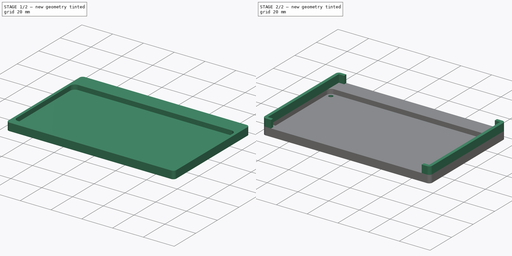
[diagram: build sequence overview — one tinted view per stage of 2, left to right]
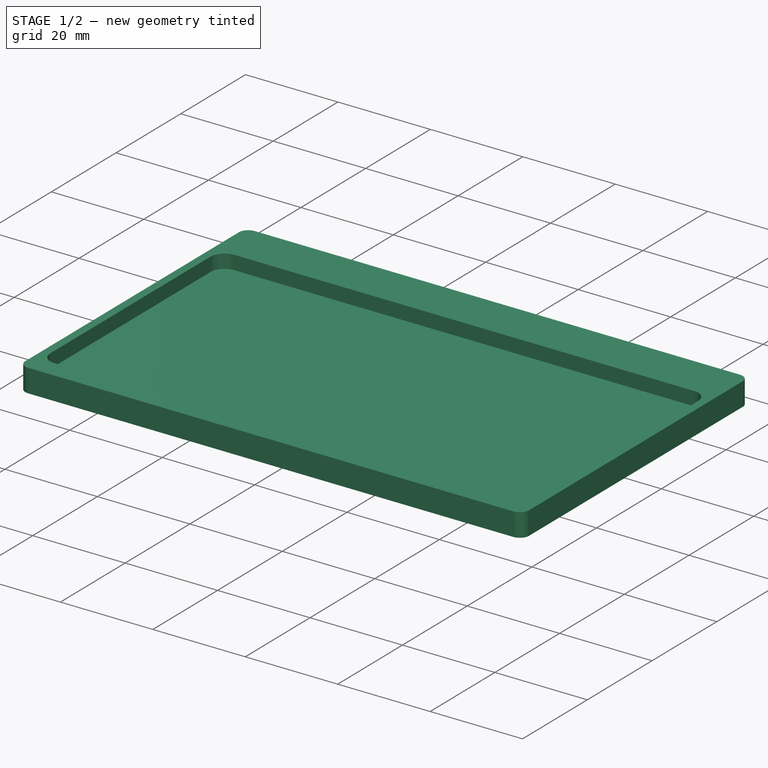
[diagram: stage 1 of 2 — iso view after this stage's code; geometry added in this stage tinted green]
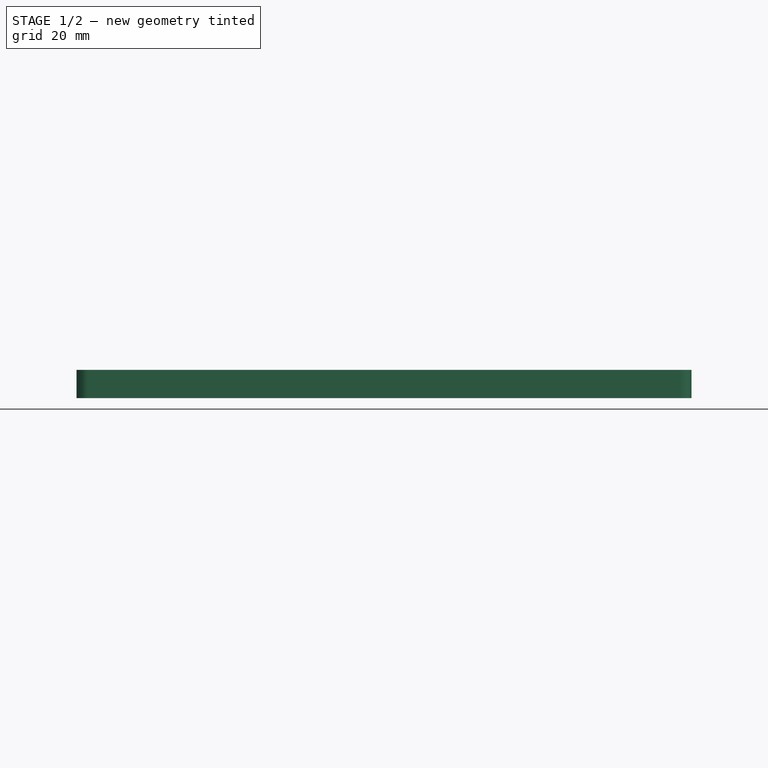
[diagram: stage 1 of 2 — front view after this stage's code; geometry added in this stage tinted green]
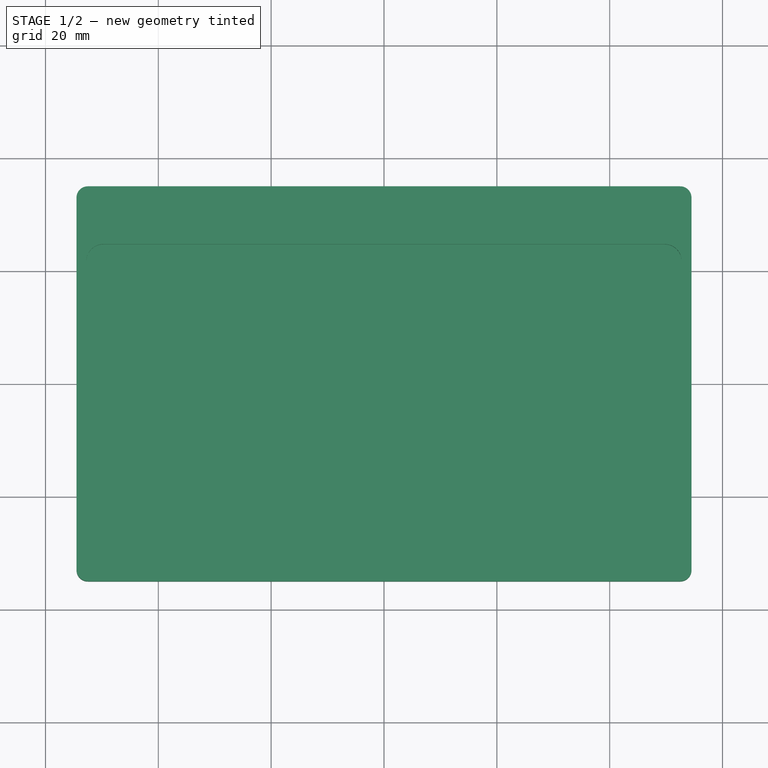
[diagram: stage 1 of 2 — top view after this stage's code; geometry added in this stage tinted green]
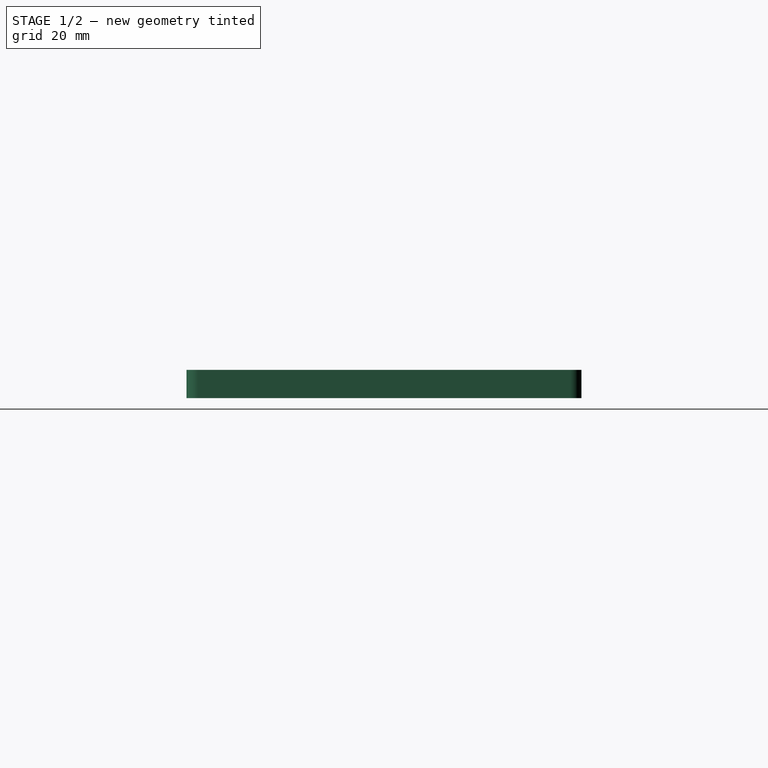
[diagram: stage 1 of 2 — right view after this stage's code; geometry added in this stage tinted green]
FCSTD DOCUMENT  (FreeCAD 1.0R39109 (Git))
Label: SSR_din_case
License: All rights reserved
LicenseURL: https://en.wikipedia.org/wiki/All_rights_reserved
objects: Sketcher::SketchObject×3, PartDesign::Pad×2, PartDesign::Pocket×2, PartDesign::Body×1
note: 19 computed .brp shape members not serialized (recipe doc carries the construction recipe); baked Part::Feature solids carry a one-line shape summary decoded from their .brp

FEATURE [Sketcher::SketchObject] Sketch
  ArcFitTolerance = 1e-06
  AttachmentSupport = -> [XY_Plane]
  FullyConstrained = true
  MakeInternals = false
  MapMode = 5
  expr: Constraints[5] = 55 + 5 + 10
  expr: Constraints[6] = 2 * 2 + 105
  sketch-geometry (12):
    g0: LineSegment StartX=-54.5 StartY=33 StartZ=0 EndX=-54.5 EndY=-33 EndZ=0
    g1: LineSegment StartX=-52.5 StartY=-35 StartZ=0 EndX=52.5 EndY=-35 EndZ=0
    g2: LineSegment StartX=54.5 StartY=-33 StartZ=0 EndX=54.5 EndY=33 EndZ=0
    g3: LineSegment StartX=52.5 StartY=35 StartZ=0 EndX=-52.5 EndY=35 EndZ=0
    g4: ArcOfCircle CenterX=-52.5 CenterY=33 CenterZ=0 NormalX=0 NormalY=0 NormalZ=1 AngleXU=0 Radius=2 StartAngle=1.5708 EndAngle=3.14159
    g5: GeomPoint [constr] X=-54.5 Y=35 Z=0
    g6: ArcOfCircle CenterX=-52.5 CenterY=-33 CenterZ=0 NormalX=0 NormalY=0 NormalZ=1 AngleXU=0 Radius=2 StartAngle=3.14159 EndAngle=4.71239
    g7: GeomPoint [constr] X=-54.5 Y=-35 Z=0
    g8: ArcOfCircle CenterX=52.5 CenterY=-33 CenterZ=0 NormalX=0 NormalY=0 NormalZ=1 AngleXU=0 Radius=2 StartAngle=4.71239 EndAngle=6.28319
    g9: GeomPoint [constr] X=54.5 Y=-35 Z=0
    g10: ArcOfCircle CenterX=52.5 CenterY=33 CenterZ=0 NormalX=0 NormalY=0 NormalZ=1 AngleXU=0 Radius=2 StartAngle=0 EndAngle=1.5708
    g11: GeomPoint [constr] X=54.5 Y=35 Z=0
  constraints (27):
    c: Vertical(g0)
    c: Vertical(g2)
    c: Horizontal(g1)
    c: Horizontal(g3)
    c: Symmetric(g5,g9,g-1)
    c: DistanceY(g7,g5) = 70
    c: DistanceX(g7,g9) = 109
    c: PointOnObject(g5,g0)
    c: PointOnObject(g5,g3)
    c: Tangent(g0,g4) = -1.5708
    c: Tangent(g3,g4) = -1.5708
    c: PointOnObject(g7,g0)
    c: PointOnObject(g7,g1)
    c: Tangent(g0,g6) = -1.5708
    c: Tangent(g1,g6) = -1.5708
    c: PointOnObject(g9,g1)
    c: PointOnObject(g9,g2)
    c: Tangent(g1,g8) = -1.5708
    c: Tangent(g2,g8) = -1.5708
    c: PointOnObject(g11,g2)
    c: PointOnObject(g11,g3)
    c: Tangent(g2,g10) = -1.5708
    c: Tangent(g3,g10) = -1.5708
    c: Equal(g10,g4)
    c: Equal(g4,g6)
    c: Equal(g6,g8)
    c: Radius(g4) = 2
FEATURE [PartDesign::Pad] Pad
  Direction = (0,0,1)
  Length = 5
  Length2 = 10
  Profile = -> Sketch
  ReferenceAxis = -> Sketch [N_Axis]
  Suppressed = false
  Type = 0
  expr: Length = 3 + 2
FEATURE [Sketcher::SketchObject] Sketch001  label="board-screws"
  ArcFitTolerance = 1e-06
  AttachmentSupport = -> [Pad]
  FullyConstrained = false
  MakeInternals = false
  MapMode = 5
  Placement = pos=(0,0,5) rot=(0,0,1;0rad)
  expr: Constraints[26] = 55.5 / 2
  sketch-geometry (17):
    g0: LineSegment StartX=-52.75 StartY=21.75 StartZ=0 EndX=-52.75 EndY=-27.75 EndZ=0
    g1: LineSegment StartX=-49.75 StartY=-30.75 StartZ=0 EndX=49.75 EndY=-30.75 EndZ=0
    g2: LineSegment StartX=52.75 StartY=-27.75 StartZ=0 EndX=52.75 EndY=21.75 EndZ=0
    g3: LineSegment StartX=49.75 StartY=24.75 StartZ=0 EndX=-49.75 EndY=24.75 EndZ=0
    g4: ArcOfCircle CenterX=-49.75 CenterY=21.75 CenterZ=0 NormalX=0 NormalY=0 NormalZ=1 AngleXU=0 Radius=3 StartAngle=1.5708 EndAngle=3.14159
    g5: GeomPoint [constr] X=-52.75 Y=24.75 Z=0
    g6: ArcOfCircle CenterX=49.75 CenterY=21.75 CenterZ=0 NormalX=0 NormalY=0 NormalZ=1 AngleXU=0 Radius=3 StartAngle=5e-16 EndAngle=1.5708
    g7: GeomPoint [constr] X=52.75 Y=24.75 Z=0
    g8: ArcOfCircle CenterX=49.75 CenterY=-27.75 CenterZ=0 NormalX=0 NormalY=0 NormalZ=1 AngleXU=0 Radius=3 StartAngle=4.71239 EndAngle=6.28319
    g9: GeomPoint [constr] X=52.75 Y=-30.75 Z=0
    g10: ArcOfCircle CenterX=-49.75 CenterY=-27.75 CenterZ=0 NormalX=0 NormalY=0 NormalZ=1 AngleXU=0 Radius=3 StartAngle=3.14159 EndAngle=4.71239
    g11: GeomPoint [constr] X=-52.75 Y=-30.75 Z=0
    g12: Circle CenterX=-50 CenterY=22 CenterZ=0 NormalX=0 NormalY=0 NormalZ=1 AngleXU=0 Radius=1.35
    g13: LineSegment [constr] StartX=-87.334 StartY=-3 StartZ=0 EndX=76.6847 EndY=-3 EndZ=0
    g14: Circle CenterX=50 CenterY=22 CenterZ=0 NormalX=0 NormalY=0 NormalZ=1 AngleXU=0 Radius=1.35
    g15: Circle CenterX=-50 CenterY=-28 CenterZ=0 NormalX=0 NormalY=0 NormalZ=1 AngleXU=0 Radius=1.35
    g16: Circle CenterX=50 CenterY=-28 CenterZ=0 NormalX=0 NormalY=0 NormalZ=1 AngleXU=0 Radius=1.35
  constraints (37):
    c: Vertical(g0)
    c: Vertical(g2)
    c: Horizontal(g1)
    c: Horizontal(g3)
    c: PointOnObject(g5,g0)
    c: PointOnObject(g5,g3)
    c: Tangent(g0,g4) = -1.5708
    c: Tangent(g3,g4) = -1.5708
    c: PointOnObject(g7,g2)
    c: Tangent(g2,g6) = -1.5708
    c: Tangent(g3,g6) = -1.5708
    c: PointOnObject(g9,g1)
    c: PointOnObject(g9,g2)
    c: Tangent(g1,g8) = -1.5708
    c: Tangent(g2,g8) = -1.5708
    c: PointOnObject(g11,g0)
    c: PointOnObject(g11,g1)
    c: Tangent(g0,g10) = -1.5708
    c: Tangent(g1,g10) = -1.5708
    c: Equal(g4,g6)
    c: Equal(g6,g8)
    c: Equal(g8,g10)
    c: Radius(g4) = 3
    c: DistanceX(g5,g7) = 105.5
    c: DistanceY(g11,g5) = 55.5
    c: Symmetric(g5,g7,g-2)
    c: Distance(g10,g-1) = 27.75
    c: Diameter(g12) = 2.7
    c: Distance(g12,g-2) = 50
    c: Symmetric(g3,g1,g13)
    c: Distance(g12,g13) = 25
    c: Equal(g12,g14)
    c: Symmetric(g12,g14,g-2)
    c: Equal(g12,g15)
    c: Symmetric(g12,g15,g13)
    c: Equal(g14,g16)
    c: Symmetric(g14,g16,g13)
FEATURE [PartDesign::Pocket] Pocket  label="board-hole"
  BaseFeature = -> Pad
  Direction = (0,0,-1)
  Length = 3
  Length2 = 5
  Profile = -> Sketch001 [Edge8,Edge7,Edge1,Edge2,Edge3,Edge4,Edge5,Edge6]
  ReferenceAxis = -> Sketch001 [N_Axis]
  Suppressed = false
  Type = 0
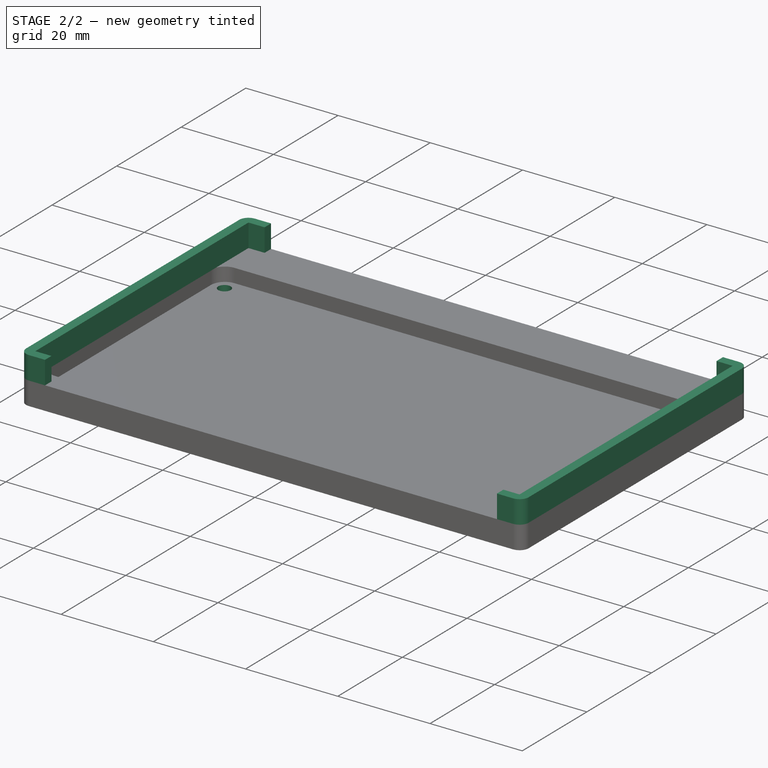
[diagram: stage 2 of 2 — iso view after this stage's code; geometry added in this stage tinted green]
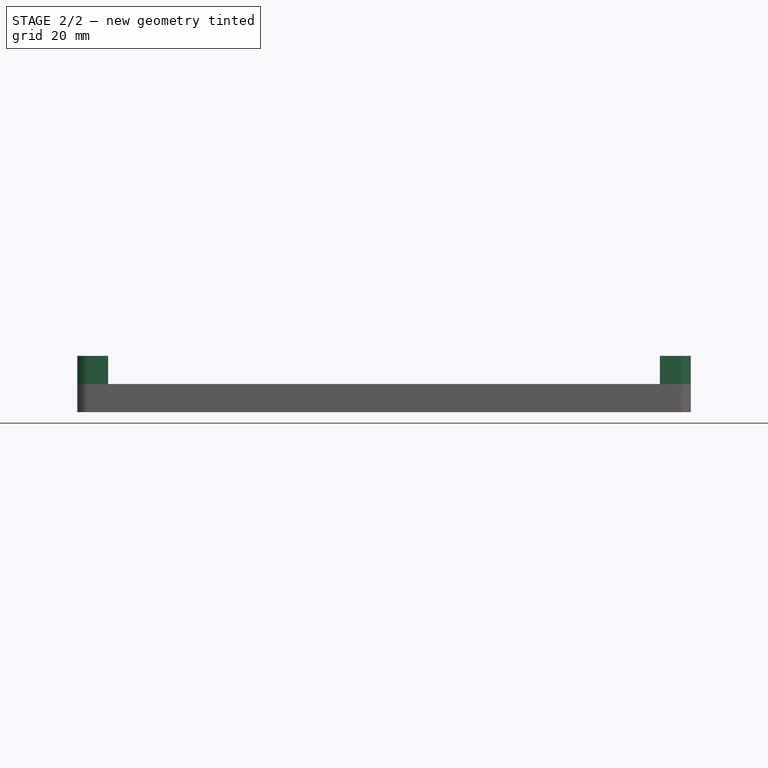
[diagram: stage 2 of 2 — front view after this stage's code; geometry added in this stage tinted green]
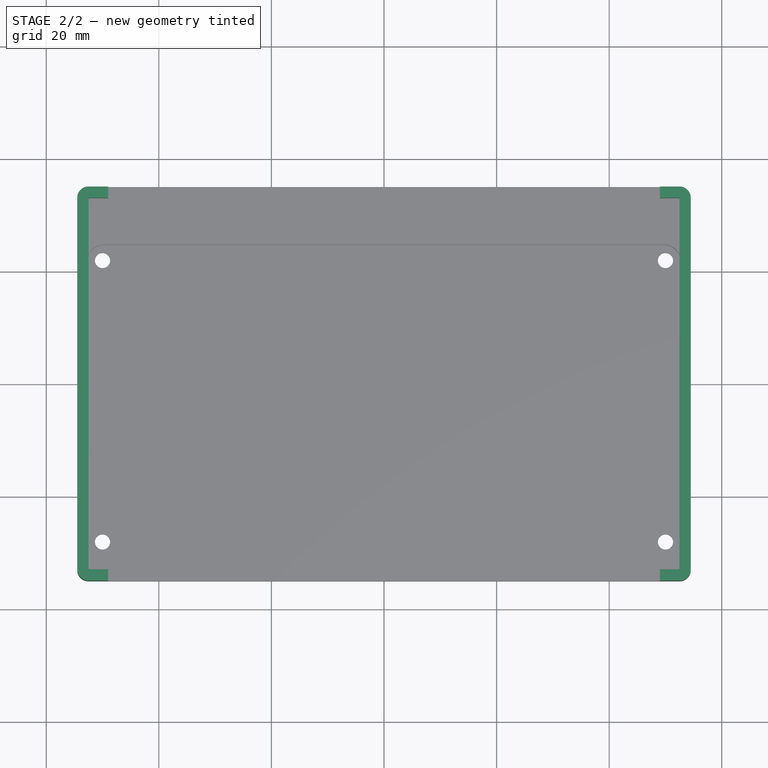
[diagram: stage 2 of 2 — top view after this stage's code; geometry added in this stage tinted green]
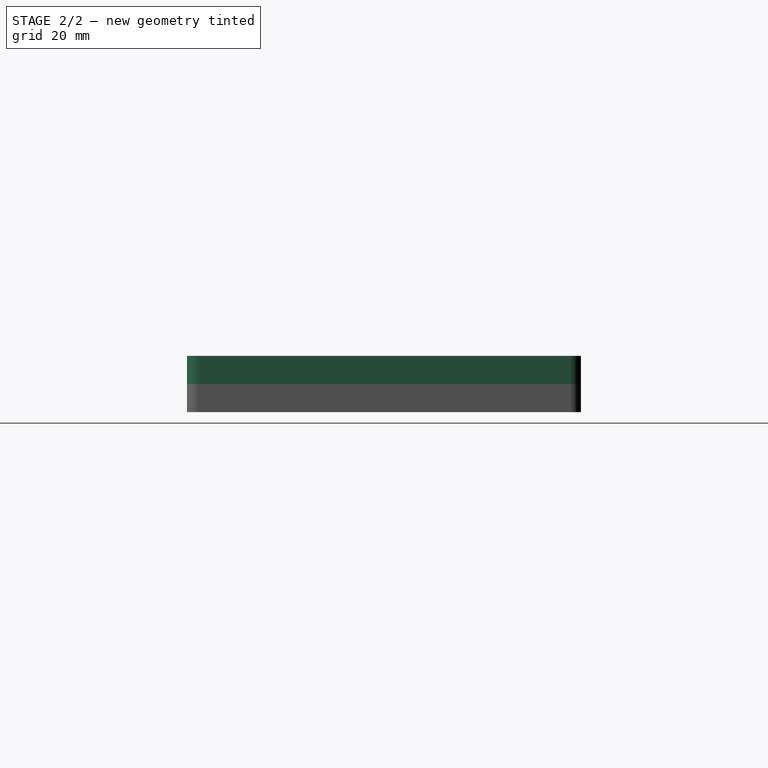
[diagram: stage 2 of 2 — right view after this stage's code; geometry added in this stage tinted green]
FEATURE [PartDesign::Pocket] Pocket001
  BaseFeature = -> Pocket
  Direction = (0,0,-1)
  Length = 7
  Length2 = 5
  Profile = -> Sketch001 [Edge9,Edge11,Edge12,Edge10]
  ReferenceAxis = -> Sketch001 [N_Axis]
  Suppressed = false
  Type = 0
FEATURE [Sketcher::SketchObject] Sketch002
  ArcFitTolerance = 1e-06
  AttachmentSupport = -> [Pocket001]
  ExternalGeometry = -> [Pocket001]
  FullyConstrained = true
  MakeInternals = false
  MapMode = 5
  Placement = pos=(0,0,5) rot=(0,0,1;0rad)
  sketch-geometry (20):
    g0: LineSegment StartX=-54.5 StartY=33 StartZ=0 EndX=-54.5 EndY=-33 EndZ=0
    g1: ArcOfCircle CenterX=-52.5 CenterY=-33 CenterZ=0 NormalX=0 NormalY=0 NormalZ=1 AngleXU=0 Radius=2 StartAngle=3.14159 EndAngle=4.71239
    g2: LineSegment StartX=-52.5 StartY=-35 StartZ=0 EndX=-49 EndY=-35 EndZ=0
    g3: LineSegment StartX=-49 StartY=-35 StartZ=0 EndX=-49 EndY=-33 EndZ=0
    g4: LineSegment StartX=-49 StartY=-33 StartZ=0 EndX=-52.5 EndY=-33 EndZ=0
    g5: LineSegment StartX=-52.5 StartY=-33 StartZ=0 EndX=-52.5 EndY=33 EndZ=0
    g6: LineSegment StartX=-52.5 StartY=33 StartZ=0 EndX=-49 EndY=33 EndZ=0
    g7: LineSegment StartX=-49 StartY=33 StartZ=0 EndX=-49 EndY=35 EndZ=0
    g8: LineSegment StartX=-49 StartY=35 StartZ=0 EndX=-52.5 EndY=35 EndZ=0
    g9: ArcOfCircle CenterX=-52.5 CenterY=33 CenterZ=0 NormalX=0 NormalY=0 NormalZ=1 AngleXU=0 Radius=2 StartAngle=1.5708 EndAngle=3.14159
    g10: LineSegment StartX=54.5 StartY=33 StartZ=0 EndX=54.5 EndY=-33 EndZ=0
    g11: ArcOfCircle CenterX=52.5 CenterY=-33 CenterZ=0 NormalX=0 NormalY=0 NormalZ=1 AngleXU=0 Radius=2 StartAngle=4.71239 EndAngle=6.28319
    g12: LineSegment StartX=52.5 StartY=-35 StartZ=0 EndX=49 EndY=-35 EndZ=0
    g13: LineSegment StartX=49 StartY=-35 StartZ=0 EndX=49 EndY=-33 EndZ=0
    g14: LineSegment StartX=49 StartY=-33 StartZ=0 EndX=52.5 EndY=-33 EndZ=0
    g15: LineSegment StartX=52.5 StartY=-33 StartZ=0 EndX=52.5 EndY=33 EndZ=0
    g16: LineSegment StartX=52.5 StartY=33 StartZ=0 EndX=49 EndY=33 EndZ=0
    g17: LineSegment StartX=49 StartY=33 StartZ=0 EndX=49 EndY=35 EndZ=0
    g18: LineSegment StartX=49 StartY=35 StartZ=0 EndX=52.5 EndY=35 EndZ=0
    g19: ArcOfCircle CenterX=52.5 CenterY=33 CenterZ=0 NormalX=0 NormalY=0 NormalZ=1 AngleXU=0 Radius=2 StartAngle=2.13e-14 EndAngle=1.5708
  constraints (45):
    c: Tangent(g0,g1) = -1.5708
    c: Coincident(g1,g-6)
    c: Tangent(g1,g2) = -1.5708
    c: Coincident(g2,g3)
    c: Vertical(g3)
    c: Perpendicular(g3,g4) = 1.5708
    c: Coincident(g4,g5)
    c: Coincident(g5,g-3)
    c: Vertical(g5)
    c: Coincident(g5,g6)
    c: Horizontal(g6)
    c: Coincident(g6,g7)
    c: PointOnObject(g7,g-10)
    c: Vertical(g7)
    c: Coincident(g7,g8)
    c: Coincident(g8,g-10)
    c: Tangent(g8,g9) = -1.5708
    c: Coincident(g9,g0)
    c: Horizontal(g4,g0)
    c: Coincident(g0,g-5)
    c: Coincident(g0,g-4)
    c: DistanceX(g6,g6) = 3.5
    c: Vertical(g6,g3)
    c: Symmetric(g0,g10,g-2)
    c: Symmetric(g0,g10,g-2)
    c: Equal(g1,g11)
    c: Symmetric(g1,g11,g-2)
    c: Symmetric(g1,g11,g-2)
    c: Symmetric(g2,g12,g-2)
    c: Symmetric(g2,g12,g-2)
    c: Symmetric(g3,g13,g-2)
    c: Symmetric(g3,g13,g-2)
    c: Symmetric(g4,g14,g-2)
    c: Symmetric(g4,g14,g-2)
    c: Symmetric(g5,g15,g-2)
    c: Symmetric(g5,g15,g-2)
    c: Symmetric(g6,g16,g-2)
    c: Symmetric(g6,g16,g-2)
    c: Symmetric(g7,g17,g-2)
    c: Symmetric(g7,g17,g-2)
    c: Symmetric(g8,g18,g-2)
    c: Symmetric(g8,g18,g-2)
    c: Equal(g9,g19)
    c: Symmetric(g9,g19,g-2)
    c: Symmetric(g9,g19,g-2)
FEATURE [PartDesign::Pad] Pad001
  BaseFeature = -> Pocket001
  Direction = (0,0,1)
  Length = 5
  Length2 = 10
  Profile = -> Sketch002
  ReferenceAxis = -> Sketch002 [N_Axis]
  Suppressed = false
  Type = 0
FEATURE [PartDesign::Body] Body
  AllowCompound = false
  Group = -> [Sketch,Pad,Sketch001,Pocket,Pocket001,Sketch002,Pad001]
  Origin = -> Origin
  Tip = -> Pad001
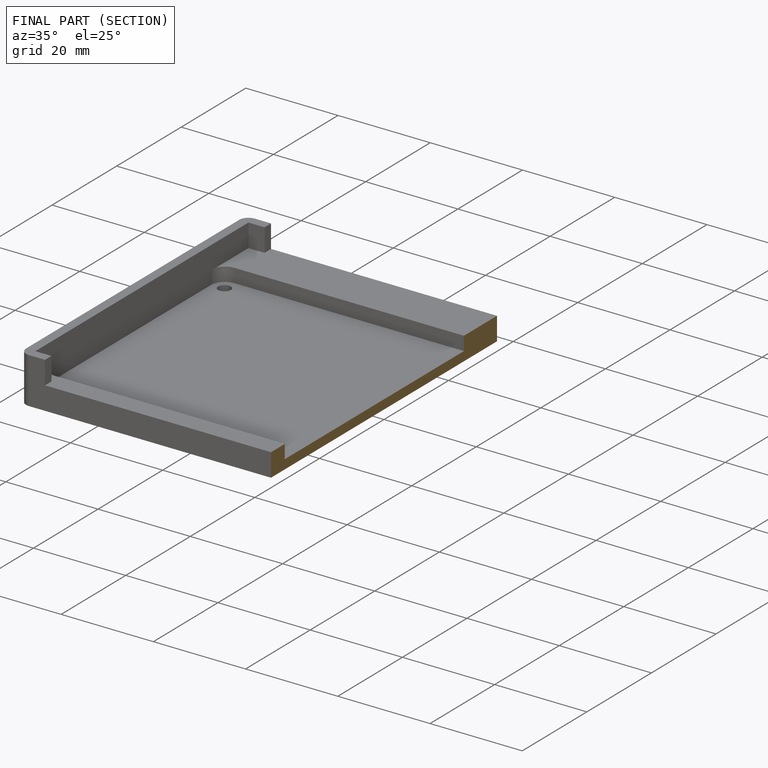
[diagram: finished part — half-section view (interior)]
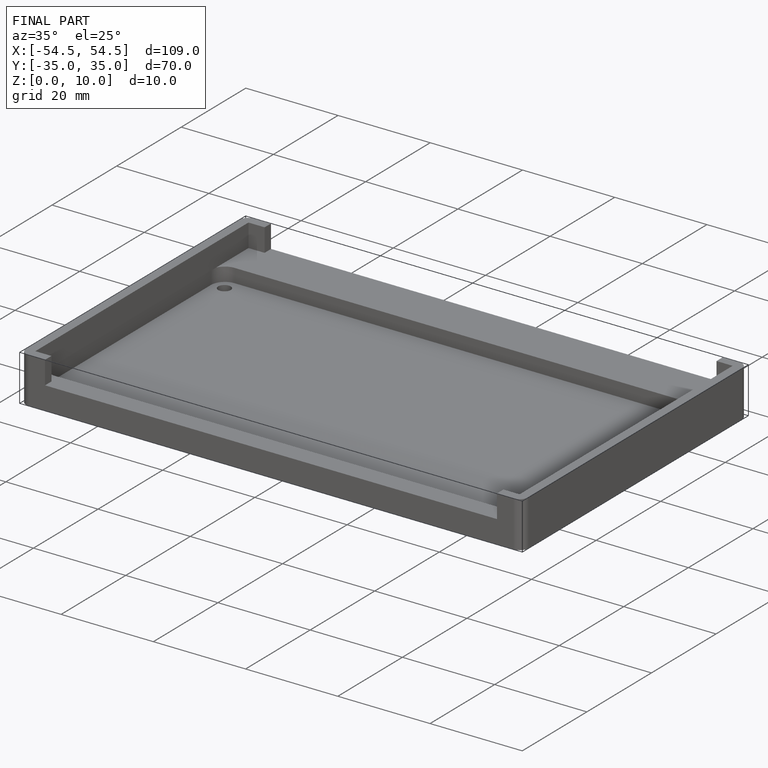
[diagram: finished part — iso view with bounding-box wireframe]
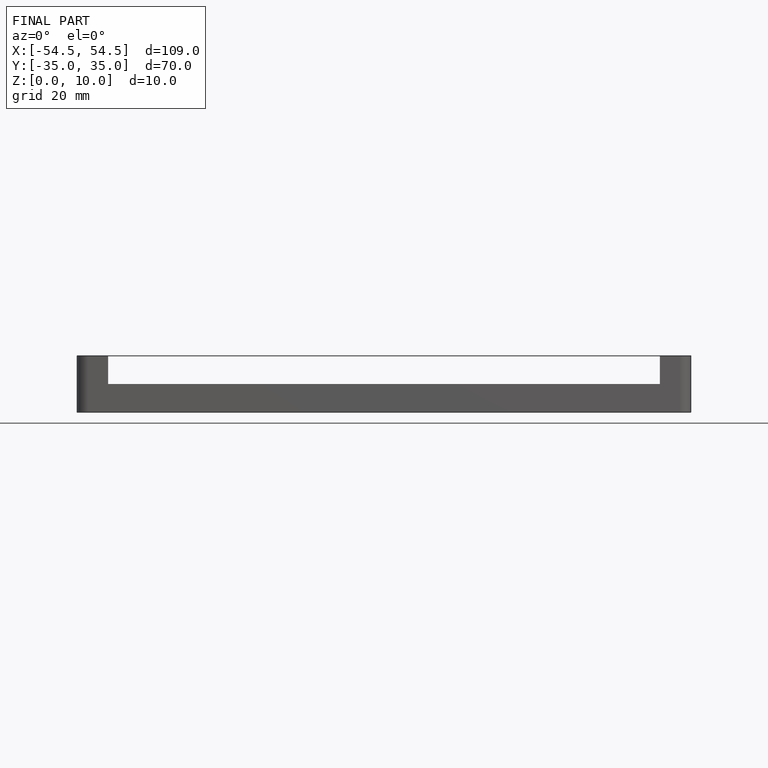
[diagram: finished part — front view with bounding-box wireframe]
